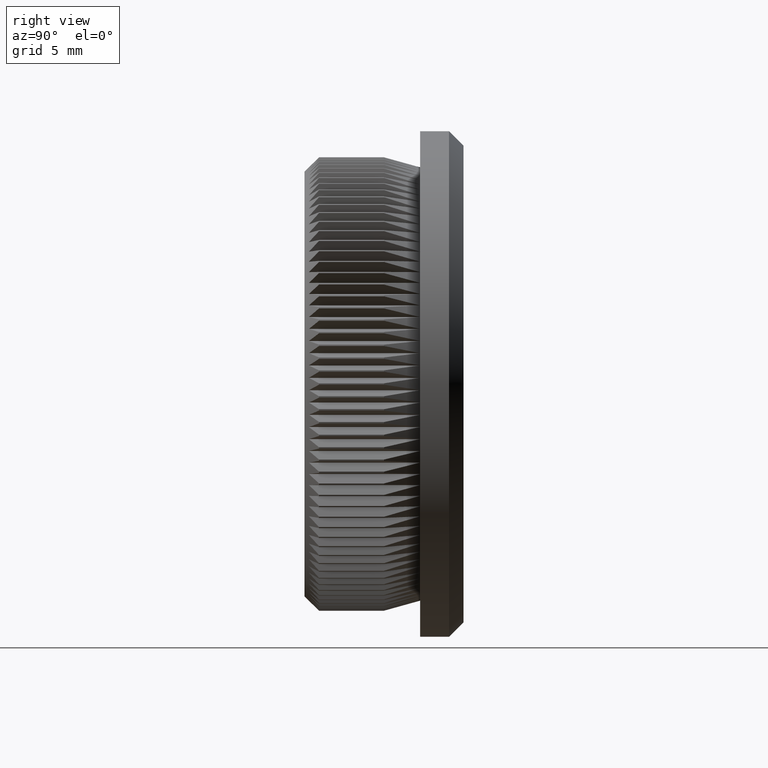
[diagram: clean part render]
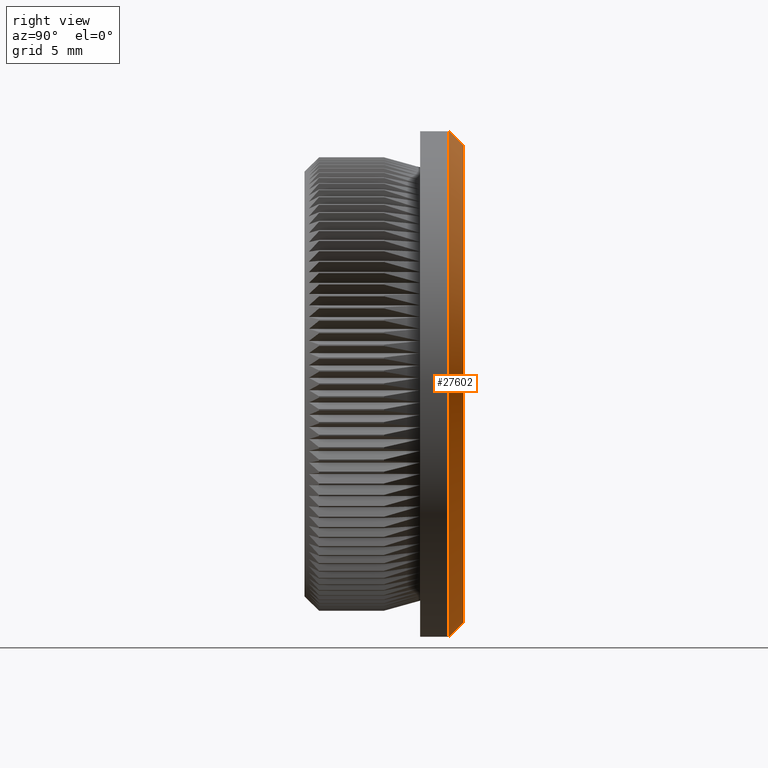
[diagram: same view with one face highlighted and labeled with its STEP entity id]
A machine part, right view. The second image highlights one B-rep face of the part: STEP entity #27602.
In plain terms, the highlighted conical surface has half-angle 45 deg.
Its self-contained STEP definition (entity closure, byte-faithful):
#40 = VERTEX_POINT ( 'NONE', #6003 ) ;
#696 = DIRECTION ( 'NONE',  ( 0.0000000000000000000, -0.7071067811865450200, -0.7071067811865500200 ) ) ;
#777 = CARTESIAN_POINT ( 'NONE',  ( 0.0000000000000000000, 10.00000000000000200, -17.50000000000000000 ) ) ;
#821 = LINE ( 'NONE', #25225, #22978 ) ;
#1089 = CIRCLE ( 'NONE', #16728, 17.50000000000000000 ) ;
#1717 = VECTOR ( 'NONE', #696, 1000.000000000000000 ) ;
#1946 = CARTESIAN_POINT ( 'NONE',  ( 2.143131898507868200E-015, 10.00000000000000200, 17.50000000000000000 ) ) ;
#4296 = EDGE_CURVE ( 'NONE', #12854, #40, #8994, .T. ) ;
#4573 = CARTESIAN_POINT ( 'NONE',  ( 0.0000000000000000000, 10.00000000000000200, 0.0000000000000000000 ) ) ;
#4696 = ORIENTED_EDGE ( 'NONE', *, *, #15739, .F. ) ;
#6003 = CARTESIAN_POINT ( 'NONE',  ( 0.0000000000000000000, 11.00000000000000000, -16.49999999999999600 ) ) ;
#6678 = VERTEX_POINT ( 'NONE', #1946 ) ;
#6971 = CARTESIAN_POINT ( 'NONE',  ( 0.0000000000000000000, 11.00000000000000000, 0.0000000000000000000 ) ) ;
#7347 = DIRECTION ( 'NONE',  ( -0.0000000000000000000, -1.000000000000000000, -0.0000000000000000000 ) ) ;
#8306 = AXIS2_PLACEMENT_3D ( 'NONE', #6971, #15409, #21953 ) ;
#8994 = CIRCLE ( 'NONE', #8306, 16.49999999999999600 ) ;
#10785 = DIRECTION ( 'NONE',  ( 0.0000000000000000000, 0.0000000000000000000, 1.000000000000000000 ) ) ;
#11045 = CARTESIAN_POINT ( 'NONE',  ( 0.0000000000000000000, 10.00000000000000200, 0.0000000000000000000 ) ) ;
#12854 = VERTEX_POINT ( 'NONE', #21363 ) ;
#13452 = AXIS2_PLACEMENT_3D ( 'NONE', #11045, #7347, #22325 ) ;
#15175 = LINE ( 'NONE', #777, #1717 ) ;
#15409 = DIRECTION ( 'NONE',  ( 0.0000000000000000000, 1.000000000000000000, 0.0000000000000000000 ) ) ;
#15739 = EDGE_CURVE ( 'NONE', #18836, #6678, #1089, .T. ) ;
#16728 = AXIS2_PLACEMENT_3D ( 'NONE', #4573, #19389, #10785 ) ;
#16924 = EDGE_CURVE ( 'NONE', #40, #18836, #15175, .T. ) ;
#18336 = CARTESIAN_POINT ( 'NONE',  ( 0.0000000000000000000, 10.00000000000000200, -17.50000000000000000 ) ) ;
#18836 = VERTEX_POINT ( 'NONE', #18336 ) ;
#19048 = ORIENTED_EDGE ( 'NONE', *, *, #25597, .T. ) ;
#19389 = DIRECTION ( 'NONE',  ( -0.0000000000000000000, -1.000000000000000000, -0.0000000000000000000 ) ) ;
#19679 = ORIENTED_EDGE ( 'NONE', *, *, #4296, .F. ) ;
#21217 = CONICAL_SURFACE ( 'NONE', #13452, 17.50000000000000000, 0.7853981633974518300 ) ;
#21225 = FACE_OUTER_BOUND ( 'NONE', #23998, .T. ) ;
#21363 = CARTESIAN_POINT ( 'NONE',  ( 2.081899558550500300E-015, 11.00000000000000000, 16.49999999999999600 ) ) ;
#21953 = DIRECTION ( 'NONE',  ( 0.0000000000000000000, 0.0000000000000000000, 1.000000000000000000 ) ) ;
#22325 = DIRECTION ( 'NONE',  ( 0.0000000000000000000, 0.0000000000000000000, -1.000000000000000000 ) ) ;
#22978 = VECTOR ( 'NONE', #25514, 1000.000000000000000 ) ;
#23998 = EDGE_LOOP ( 'NONE', ( #19679, #19048, #4696, #25826 ) ) ;
#25225 = CARTESIAN_POINT ( 'NONE',  ( 2.143131898507868200E-015, 10.00000000000000200, 17.50000000000000000 ) ) ;
#25514 = DIRECTION ( 'NONE',  ( 8.659560562354963700E-017, -0.7071067811865450200, 0.7071067811865500200 ) ) ;
#25597 = EDGE_CURVE ( 'NONE', #12854, #6678, #821, .T. ) ;
#25826 = ORIENTED_EDGE ( 'NONE', *, *, #16924, .F. ) ;
#27602 = ADVANCED_FACE ( 'NONE', ( #21225 ), #21217, .T. ) ;